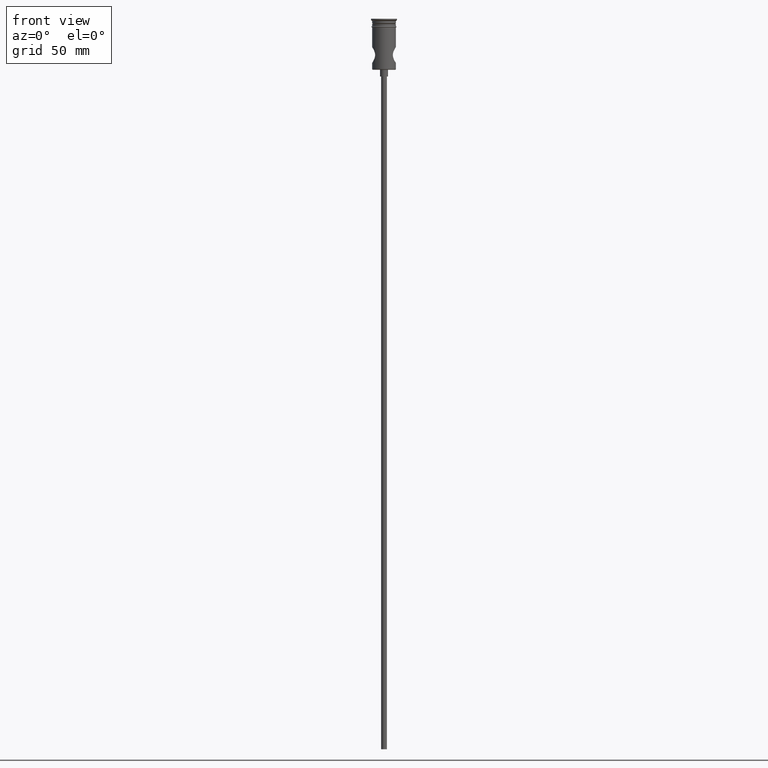
[diagram: clean part render]
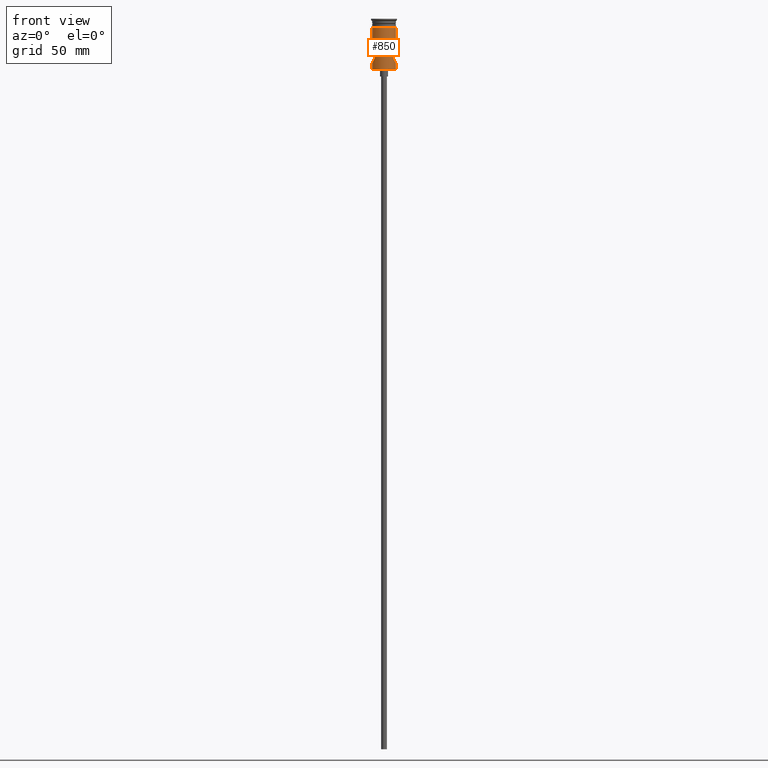
[diagram: same view with one face highlighted and labeled with its STEP entity id]
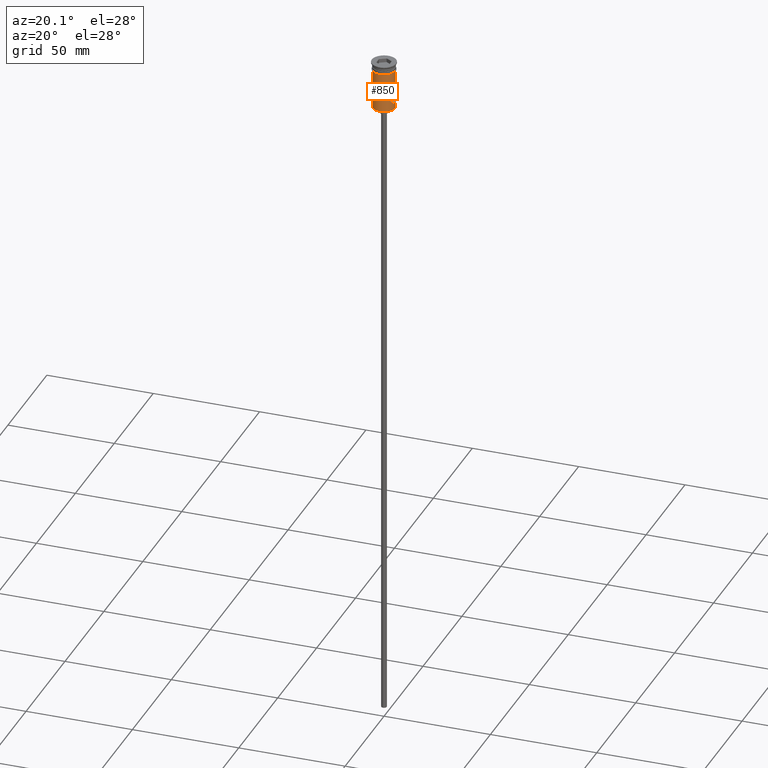
[diagram: same view with one face highlighted and labeled with its STEP entity id]
A machine part, front view. The second image highlights one B-rep face of the part: STEP entity #850.
A second angle (auxiliary view) of the same face is appended — the face is thin or edge-on in the first view.
In plain terms, the highlighted cylindrical surface (edge-blend (fillet) strip) has radius 5.25 mm, axis along (-0, -0, 1).
Its self-contained STEP definition (entity closure, byte-faithful):
#8 = CARTESIAN_POINT ( 'NONE',  ( 5.233633430427243383, -0.4750094798020726428, -12.52441511600401824 ) ) ;
#14 = EDGE_CURVE ( 'NONE', #422, #657, #1217, .T. ) ;
#34 = VERTEX_POINT ( 'NONE', #713 ) ;
#52 = ORIENTED_EDGE ( 'NONE', *, *, #1141, .T. ) ;
#53 = ORIENTED_EDGE ( 'NONE', *, *, #1297, .F. ) ;
#70 = CARTESIAN_POINT ( 'NONE',  ( 5.124746031636080446, -1.160605218168686559, -19.30988035096184774 ) ) ;
#72 = CARTESIAN_POINT ( 'NONE',  ( -3.918847831090380041, -3.493622200933426569, -16.24210921229989424 ) ) ;
#77 = CARTESIAN_POINT ( 'NONE',  ( 3.935709764125989718, -3.475135228226967854, -16.47752279465179015 ) ) ;
#102 = CARTESIAN_POINT ( 'NONE',  ( -5.250000000000000000, -0.2359691128690696027, -12.50000000000000711 ) ) ;
#133 = CARTESIAN_POINT ( 'NONE',  ( 5.249999999999997335, 9.037561610381727207E-20, -12.50000000000000000 ) ) ;
#162 = EDGE_CURVE ( 'NONE', #836, #34, #463, .T. ) ;
#164 = CARTESIAN_POINT ( 'NONE',  ( 4.015860184454198567, -3.382190437898871416, -15.06951789628485727 ) ) ;
#173 = CARTESIAN_POINT ( 'NONE',  ( -3.912935558424083915, -3.500205050033671217, -15.76559328519910252 ) ) ;
#180 = VECTOR ( 'NONE', #1065, 1000.000000000000000 ) ;
#181 = VERTEX_POINT ( 'NONE', #343 ) ;
#183 = CARTESIAN_POINT ( 'NONE',  ( -4.213805231981512023, -3.133507475994600444, -17.57552681985903220 ) ) ;
#186 = CARTESIAN_POINT ( 'NONE',  ( 4.793649463825864210, -2.150235679629801222, -18.77070743917914442 ) ) ;
#207 = CARTESIAN_POINT ( 'NONE',  ( -5.125401452483049347, -1.158029921580444821, -12.68909474010616023 ) ) ;
#218 = DIRECTION ( 'NONE',  ( -0.000000000000000000, -0.000000000000000000, 1.000000000000000000 ) ) ;
#260 = VECTOR ( 'NONE', #1438, 1000.000000000000000 ) ;
#266 = ORIENTED_EDGE ( 'NONE', *, *, #162, .T. ) ;
#267 = CYLINDRICAL_SURFACE ( 'NONE', #481, 5.249999999999997335 ) ;
#271 = CARTESIAN_POINT ( 'NONE',  ( 3.913265713256699474, -3.499835925500728528, -16.24147938307707051 ) ) ;
#293 = VERTEX_POINT ( 'NONE', #803 ) ;
#313 = CARTESIAN_POINT ( 'NONE',  ( -5.171017401262786528, -0.9368000147816665235, -12.61943741575976219 ) ) ;
#343 = CARTESIAN_POINT ( 'NONE',  ( -5.249999999999998224, 6.429395695523602181E-16, -3.799999999999998934 ) ) ;
#361 = DIRECTION ( 'NONE',  ( 1.000000000000000000, 0.000000000000000000, 0.000000000000000000 ) ) ;
#381 = LINE ( 'NONE', #903, #1255 ) ;
#391 = FACE_OUTER_BOUND ( 'NONE', #510, .T. ) ;
#405 = CARTESIAN_POINT ( 'NONE',  ( 0.000000000000000000, 0.000000000000000000, -22.30000000000006466 ) ) ;
#409 = CARTESIAN_POINT ( 'NONE',  ( -4.073963173537559435, -3.313288510862783642, -14.84939764593512557 ) ) ;
#418 = CARTESIAN_POINT ( 'NONE',  ( -4.076450620869312758, -3.310222646711699301, -17.15912893648900450 ) ) ;
#422 = VERTEX_POINT ( 'NONE', #708 ) ;
#424 = CARTESIAN_POINT ( 'NONE',  ( -4.710700327440311419, -2.324554412983744989, -13.37397079666040334 ) ) ;
#425 = B_SPLINE_CURVE_WITH_KNOTS ( 'NONE', 3,
 ( #133, #1323, #8, #572, #813, #1070, #610, #1254, #498, #625, #591, #681, #1368, #948, #164, #507, #599, #271, #77, #1055, #703, #1123, #1280, #923, #186, #834, #1272, #70, #929, #1159, #1145, #709 ),
 .UNSPECIFIED., .F., .F.,
 ( 4, 2, 2, 2, 2, 2, 2, 2, 2, 2, 2, 2, 2, 2, 2, 4 ),
 ( 0.01131190453721613205, 0.01201796450896624319, 0.01272402448071635259, 0.01343008445246646372, 0.01413614442421657486, 0.01484220439596668599, 0.01554826436771679712, 0.01625432433946690652, 0.01696038431121701939, 0.01766644428296712879, 0.01837250425471723819, 0.01978462419821747087, 0.02049068416996758721, 0.02119674414171770355, 0.02190280411346781642, 0.02260886408521793275 ),
 .UNSPECIFIED. ) ;
#433 = CARTESIAN_POINT ( 'NONE',  ( -4.015700048634970543, -3.382383198169306660, -15.06996144822463179 ) ) ;
#463 = LINE ( 'NONE', #665, #260 ) ;
#481 = AXIS2_PLACEMENT_3D ( 'NONE', #587, #1363, #361 ) ;
#498 = CARTESIAN_POINT ( 'NONE',  ( 4.708760133973805218, -2.328399268865064098, -13.37747860927764343 ) ) ;
#507 = CARTESIAN_POINT ( 'NONE',  ( 3.934854629125831060, -3.476098995561848870, -15.52910205287917300 ) ) ;
#510 = EDGE_LOOP ( 'NONE', ( #634, #52, #1410, #1274, #266, #53, #542, #1302 ) ) ;
#529 = CARTESIAN_POINT ( 'NONE',  ( -4.542868706571997706, -2.637461925376886285, -18.31144200051445381 ) ) ;
#537 = CARTESIAN_POINT ( 'NONE',  ( -5.249999999999997335, 6.428491939192731130E-16, -12.50000000000000000 ) ) ;
#542 = ORIENTED_EDGE ( 'NONE', *, *, #1128, .F. ) ;
#547 = VERTEX_POINT ( 'NONE', #1414 ) ;
#572 = CARTESIAN_POINT ( 'NONE',  ( 5.171157607198457740, -0.9357787620484788738, -12.61922458594744434 ) ) ;
#587 = CARTESIAN_POINT ( 'NONE',  ( 0.000000000000000000, 0.000000000000000000, 0.000000000000000000 ) ) ;
#591 = CARTESIAN_POINT ( 'NONE',  ( 4.455882725706746150, -2.780268144892072968, -13.86229586798407887 ) ) ;
#599 = CARTESIAN_POINT ( 'NONE',  ( 3.912973667625768925, -3.500162442579392241, -15.76330045747091191 ) ) ;
#610 = CARTESIAN_POINT ( 'NONE',  ( 4.941870577857391922, -1.783409467750110000, -12.98008101414071547 ) ) ;
#620 = CARTESIAN_POINT ( 'NONE',  ( -4.017161582871403347, -3.380647649991994186, -16.93567858667558923 ) ) ;
#625 = CARTESIAN_POINT ( 'NONE',  ( 4.541142868155102263, -2.640433033719364886, -13.69193262782664000 ) ) ;
#628 = CARTESIAN_POINT ( 'NONE',  ( -3.940413688538168646, -3.469280093805878540, -16.47760714426993189 ) ) ;
#634 = ORIENTED_EDGE ( 'NONE', *, *, #14, .F. ) ;
#643 = CARTESIAN_POINT ( 'NONE',  ( -5.011119671772967799, -1.580839205956426685, -19.13107480940701421 ) ) ;
#657 = VERTEX_POINT ( 'NONE', #1436 ) ;
#665 = CARTESIAN_POINT ( 'NONE',  ( 5.249999999999997335, 0.000000000000000000, 0.000000000000000000 ) ) ;
#681 = CARTESIAN_POINT ( 'NONE',  ( 4.290711569970872219, -3.028956263479463562, -14.23220649750371614 ) ) ;
#682 = AXIS2_PLACEMENT_3D ( 'NONE', #405, #1264, #940 ) ;
#703 = CARTESIAN_POINT ( 'NONE',  ( 4.076244073135415036, -3.310471843351305843, -17.15838242263341229 ) ) ;
#708 = CARTESIAN_POINT ( 'NONE',  ( -5.249999999999997335, 6.429395695523601195E-16, -22.30000000000006466 ) ) ;
#709 = CARTESIAN_POINT ( 'NONE',  ( 5.249999999999997335, 0.000000000000000000, -19.50000000000000000 ) ) ;
#710 = VERTEX_POINT ( 'NONE', #764 ) ;
#713 = CARTESIAN_POINT ( 'NONE',  ( 5.249999999999999112, 0.000000000000000000, -3.799999999999998934 ) ) ;
#731 = CARTESIAN_POINT ( 'NONE',  ( -4.291847880858497000, -3.027309060174747213, -17.77045454751424103 ) ) ;
#740 = CARTESIAN_POINT ( 'NONE',  ( -4.211626988821404183, -3.136439829262894108, -14.43012365747861736 ) ) ;
#745 = CARTESIAN_POINT ( 'NONE',  ( -3.913212435243750065, -3.499895492128140884, -16.12176624835053573 ) ) ;
#756 = CARTESIAN_POINT ( 'NONE',  ( -5.249999999999997335, 0.000000000000000000, -19.50000000000000000 ) ) ;
#764 = CARTESIAN_POINT ( 'NONE',  ( 5.249999999999997335, 0.000000000000000000, -22.30000000000006466 ) ) ;
#794 = AXIS2_PLACEMENT_3D ( 'NONE', #1091, #218, #1433 ) ;
#803 = CARTESIAN_POINT ( 'NONE',  ( 5.249999999999997335, 0.000000000000000000, -19.50000000000000000 ) ) ;
#813 = CARTESIAN_POINT ( 'NONE',  ( 5.125624017123612042, -1.157272214673059407, -12.68874170657910661 ) ) ;
#828 = CARTESIAN_POINT ( 'NONE',  ( -5.249999999999997335, 6.429395695523601195E-16, 0.000000000000000000 ) ) ;
#830 = CARTESIAN_POINT ( 'NONE',  ( -4.943096194098154150, -1.780193258326856931, -19.02194769508573202 ) ) ;
#833 = EDGE_CURVE ( 'NONE', #710, #293, #381, .T. ) ;
#834 = CARTESIAN_POINT ( 'NONE',  ( 4.943496079229932505, -1.778885936374027255, -19.02256480771651681 ) ) ;
#836 = VERTEX_POINT ( 'NONE', #917 ) ;
#837 = CARTESIAN_POINT ( 'NONE',  ( -3.956270316689133537, -3.451288398606817687, -16.59344471299514368 ) ) ;
#846 = CARTESIAN_POINT ( 'NONE',  ( -4.542248346412463000, -2.638603940227049804, -13.68972905434602971 ) ) ;
#850 = ADVANCED_FACE ( 'NONE', ( #391 ), #267, .T. ) ;
#853 = CARTESIAN_POINT ( 'NONE',  ( -4.941524827079388338, -1.784271681777893637, -12.98066119771261739 ) ) ;
#861 = CIRCLE ( 'NONE', #682, 5.249999999999997335 ) ;
#895 = DIRECTION ( 'NONE',  ( -0.000000000000000000, -0.000000000000000000, 1.000000000000000000 ) ) ;
#903 = CARTESIAN_POINT ( 'NONE',  ( 5.249999999999997335, 0.000000000000000000, 0.000000000000000000 ) ) ;
#917 = CARTESIAN_POINT ( 'NONE',  ( 5.249999999999997335, 9.037561610381727207E-20, -12.50000000000000000 ) ) ;
#919 = VECTOR ( 'NONE', #895, 1000.000000000000000 ) ;
#923 = CARTESIAN_POINT ( 'NONE',  ( 4.710874926819404784, -2.324119615847294984, -18.62629487387890848 ) ) ;
#929 = CARTESIAN_POINT ( 'NONE',  ( 5.171446349193719705, -0.9340234967078276940, -19.38121539794984827 ) ) ;
#940 = DIRECTION ( 'NONE',  ( -1.000000000000000000, 0.000000000000000000, 0.000000000000000000 ) ) ;
#948 = CARTESIAN_POINT ( 'NONE',  ( 4.074555398726830369, -3.312536795685569135, -14.84752675069977990 ) ) ;
#953 = EDGE_CURVE ( 'NONE', #657, #547, #1078, .T. ) ;
#969 = CARTESIAN_POINT ( 'NONE',  ( -4.291292931424322887, -3.028111643923960372, -14.23084841941946976 ) ) ;
#978 = CARTESIAN_POINT ( 'NONE',  ( -4.791726953342657858, -2.154678821938329047, -18.76742029390492661 ) ) ;
#1037 = DIRECTION ( 'NONE',  ( -0.000000000000000000, -0.000000000000000000, 1.000000000000000000 ) ) ;
#1042 = LINE ( 'NONE', #828, #180 ) ;
#1055 = CARTESIAN_POINT ( 'NONE',  ( 4.017013811892041986, -3.380824786493573431, -16.93520940805085928 ) ) ;
#1065 = DIRECTION ( 'NONE',  ( -0.000000000000000000, -0.000000000000000000, 1.000000000000000000 ) ) ;
#1067 = CARTESIAN_POINT ( 'NONE',  ( -5.171738567981855716, -0.9322884155218372770, -19.38166086832590551 ) ) ;
#1070 = CARTESIAN_POINT ( 'NONE',  ( 5.010287030224574778, -1.583769054670559395, -12.87024185501964624 ) ) ;
#1078 = B_SPLINE_CURVE_WITH_KNOTS ( 'NONE', 3,
 ( #756, #1183, #1395, #1067, #1403, #643, #830, #978, #1275, #529, #1088, #731, #183, #418, #620, #837, #628, #72, #745, #173, #1079, #433, #409, #740, #969, #1412, #846, #424, #1285, #853, #1299, #207, #313, #1190, #102, #537 ),
 .UNSPECIFIED., .F., .F.,
 ( 4, 2, 2, 2, 2, 2, 2, 2, 2, 2, 2, 2, 2, 2, 2, 2, 2, 4 ),
 ( 0.000000000000000000, 0.0007069940335760027238, 0.001413988067152005448, 0.002120982100728007955, 0.002827976134304010895, 0.003534970167880013402, 0.004241964201456015909, 0.004948958235032018850, 0.005302455251820025091, 0.005655952268608031332, 0.006362946302184043813, 0.007069940335760057162, 0.007776934369336069644, 0.008483928402912082126, 0.009190922436488094607, 0.009897916470064108824, 0.01060491050364011957, 0.01131190453721613379 ),
 .UNSPECIFIED. ) ;
#1079 = CARTESIAN_POINT ( 'NONE',  ( -3.934500147216332344, -3.476502778859750897, -15.53158113228982806 ) ) ;
#1088 = CARTESIAN_POINT ( 'NONE',  ( -4.456129832326547024, -2.779831882631588424, -18.13814034968121192 ) ) ;
#1091 = CARTESIAN_POINT ( 'NONE',  ( 0.000000000000000000, 0.000000000000000000, -3.799999999999998934 ) ) ;
#1095 = EDGE_CURVE ( 'NONE', #836, #293, #425, .T. ) ;
#1122 = CIRCLE ( 'NONE', #794, 5.249999999999999112 ) ;
#1123 = CARTESIAN_POINT ( 'NONE',  ( 4.282019573606241636, -3.045778496349780262, -17.78256220141813060 ) ) ;
#1128 = EDGE_CURVE ( 'NONE', #547, #181, #1042, .T. ) ;
#1141 = EDGE_CURVE ( 'NONE', #422, #710, #861, .T. ) ;
#1145 = CARTESIAN_POINT ( 'NONE',  ( 5.249999999999995559, -0.2391654009334196473, -19.49999999999999645 ) ) ;
#1159 = CARTESIAN_POINT ( 'NONE',  ( 5.233651169580556761, -0.4745025501927485623, -19.47560998813100142 ) ) ;
#1183 = CARTESIAN_POINT ( 'NONE',  ( -5.249999999999997335, -0.2394817979535391328, -19.49999999999999645 ) ) ;
#1190 = CARTESIAN_POINT ( 'NONE',  ( -5.233763254461207381, -0.4740647931550001082, -12.52421804113796000 ) ) ;
#1217 = LINE ( 'NONE', #1232, #919 ) ;
#1232 = CARTESIAN_POINT ( 'NONE',  ( -5.249999999999997335, 6.429395695523601195E-16, 0.000000000000000000 ) ) ;
#1254 = CARTESIAN_POINT ( 'NONE',  ( 4.791591092289863241, -2.154829214170282725, -13.23284061381126975 ) ) ;
#1255 = VECTOR ( 'NONE', #1037, 1000.000000000000000 ) ;
#1264 = DIRECTION ( 'NONE',  ( -0.000000000000000000, -0.000000000000000000, 1.000000000000000000 ) ) ;
#1272 = CARTESIAN_POINT ( 'NONE',  ( 5.010881149324092121, -1.581485525877044829, -19.13068937161849803 ) ) ;
#1274 = ORIENTED_EDGE ( 'NONE', *, *, #1095, .F. ) ;
#1275 = CARTESIAN_POINT ( 'NONE',  ( -4.710272676435011796, -2.325337138264823800, -18.62521936663612010 ) ) ;
#1280 = CARTESIAN_POINT ( 'NONE',  ( 4.459834455484655180, -2.792467526987480575, -18.15591097312378110 ) ) ;
#1285 = CARTESIAN_POINT ( 'NONE',  ( -4.791879949463428545, -2.154107611278241574, -13.23235612182024212 ) ) ;
#1297 = EDGE_CURVE ( 'NONE', #181, #34, #1122, .T. ) ;
#1299 = CARTESIAN_POINT ( 'NONE',  ( -5.010722034647407064, -1.582225660229890307, -12.86955452061876848 ) ) ;
#1302 = ORIENTED_EDGE ( 'NONE', *, *, #953, .F. ) ;
#1323 = CARTESIAN_POINT ( 'NONE',  ( 5.249999999999997335, -0.2356573567156187154, -12.50000000000000178 ) ) ;
#1363 = DIRECTION ( 'NONE',  ( -0.000000000000000000, -0.000000000000000000, 1.000000000000000000 ) ) ;
#1368 = CARTESIAN_POINT ( 'NONE',  ( 4.211358233975349030, -3.136775979440170392, -14.43100953861070757 ) ) ;
#1395 = CARTESIAN_POINT ( 'NONE',  ( -5.233705508463599720, -0.4736751586742008469, -19.47569040078916203 ) ) ;
#1403 = CARTESIAN_POINT ( 'NONE',  ( -5.125279937689080967, -1.158394803269064743, -19.31071042783137059 ) ) ;
#1410 = ORIENTED_EDGE ( 'NONE', *, *, #833, .T. ) ;
#1412 = CARTESIAN_POINT ( 'NONE',  ( -4.455965565348066093, -2.780112593366053542, -13.86216665491766697 ) ) ;
#1414 = CARTESIAN_POINT ( 'NONE',  ( -5.249999999999997335, 6.428491939192731130E-16, -12.50000000000000000 ) ) ;
#1433 = DIRECTION ( 'NONE',  ( 1.000000000000000000, 0.000000000000000000, 0.000000000000000000 ) ) ;
#1436 = CARTESIAN_POINT ( 'NONE',  ( -5.249999999999997335, 0.000000000000000000, -19.50000000000000000 ) ) ;
#1438 = DIRECTION ( 'NONE',  ( -0.000000000000000000, -0.000000000000000000, 1.000000000000000000 ) ) ;